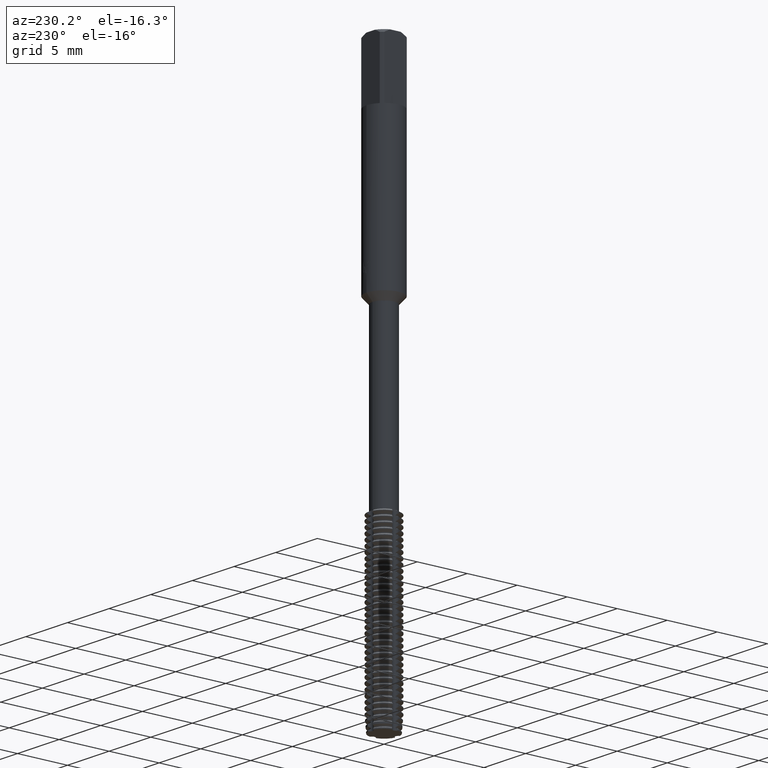
[diagram: clean part render]
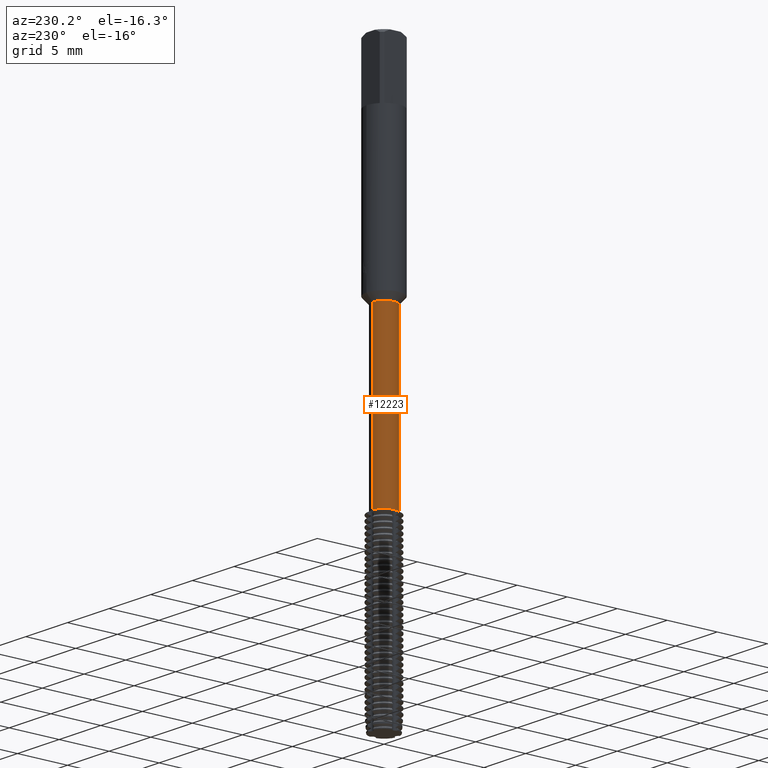
[diagram: same view with one face highlighted and labeled with its STEP entity id]
A machine part, auxiliary view. The second image highlights one B-rep face of the part: STEP entity #12223.
In plain terms, the highlighted cylindrical surface (edge-blend (fillet) strip) has radius 1.15 mm, axis along (-0, -0, 1).
Its self-contained STEP definition (entity closure, byte-faithful):
#8119=EDGE_CURVE('',#11199,#10589,#19180,.T.);
#10589=VERTEX_POINT('',#21862);
#11199=VERTEX_POINT('',#22521);
#11785=VERTEX_POINT('',#23161);
#12223=ADVANCED_FACE('',(#23642),#23643,.T.);
#14737=EDGE_CURVE('',#15065,#11199,#26367,.T.);
#15065=VERTEX_POINT('',#26716);
#15383=EDGE_CURVE('',#10589,#11785,#27064,.T.);
#15789=EDGE_CURVE('',#15065,#11785,#27507,.T.);
#19180=CIRCLE('',#33628,1.15);
#21862=CARTESIAN_POINT('',(0.0,1.15,-21.64356964));
#22521=CARTESIAN_POINT('',(1.40829730689573E-016,-1.15,-21.64356964));
#23161=CARTESIAN_POINT('',(0.0,1.15,-38.2979274057836));
#23642=FACE_OUTER_BOUND('',#41853,.T.);
#23643=CYLINDRICAL_SURFACE('',#41854,1.15);
#26367=LINE('',#47036,#47037);
#26716=CARTESIAN_POINT('',(1.40829730689573E-016,-1.15,-38.2979274057836));
#27064=LINE('',#48273,#48274);
#27507=CIRCLE('',#49061,1.15);
#33628=AXIS2_PLACEMENT_3D('',#53187,#53188,#53189);
#41853=EDGE_LOOP('',(#57600,#57601,#57602,#57603));
#41854=AXIS2_PLACEMENT_3D('',#57604,#57605,#57606);
#47036=CARTESIAN_POINT('',(1.40829730689573E-016,-1.15,-29.9707485228918));
#47037=VECTOR('',#60501,1.0);
#48273=CARTESIAN_POINT('',(-1.40829730689573E-016,1.15,-29.9707485228918));
#48274=VECTOR('',#61130,1.0);
#49061=AXIS2_PLACEMENT_3D('',#61866,#61867,#61868);
#53187=CARTESIAN_POINT('',(0.0,0.0,-21.64356964));
#53188=DIRECTION('',(0.0,0.0,-1.0));
#53189=DIRECTION('',(0.0,1.0,0.0));
#57600=ORIENTED_EDGE('',*,*,#15383,.T.);
#57601=ORIENTED_EDGE('',*,*,#15789,.F.);
#57602=ORIENTED_EDGE('',*,*,#14737,.T.);
#57603=ORIENTED_EDGE('',*,*,#8119,.T.);
#57604=CARTESIAN_POINT('',(0.0,0.0,-29.9707485228918));
#57605=DIRECTION('',(-0.0,-0.0,1.0));
#57606=DIRECTION('',(0.0,1.0,0.0));
#60501=DIRECTION('',(-0.0,-0.0,1.0));
#61130=DIRECTION('',(0.0,0.0,-1.0));
#61866=CARTESIAN_POINT('',(0.0,0.0,-38.2979274057836));
#61867=DIRECTION('',(0.0,0.0,-1.0));
#61868=DIRECTION('',(0.0,1.0,0.0));